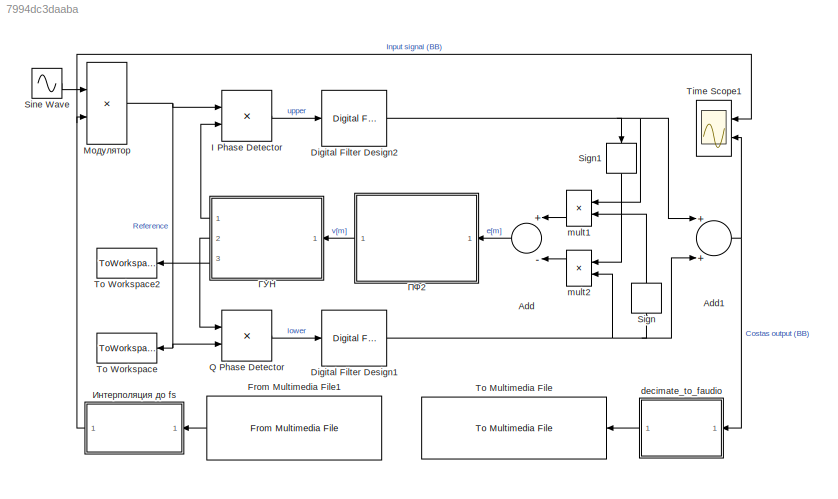
MODEL slx_7994dc3daaba
KIND model
CONFIG AbsTol = auto
CONFIG EnableMultiTasking = on
CONFIG FixedStep = auto
CONFIG MaxStep = auto
CONFIG MinStep = auto
CONFIG PreLoadFcn = % Инициализация параметров модели\nfs = 48e3*10; % \nfc = fs/5;\n% параметры контура ФАПЧ\nA = 1;       % амплитуда входного сигнала \nT = 1/fs;    % период дискретизации\nKp = A/2;   % коэффициент усиления ФД\nBn = 1500; % шумовая полоса, Гц\nKo = 1;      % коэффициент усиления ГУН (нормирован к fs)\nd = 0.707;  % демпинг фактор\n% оценка коэффициентов ПФ\nK1 = (4*d*Bn*T)/(Ko*Kp*(d+1/(4*d)));\nK2 = (4*(Bn*T)...<+24ch>
CONFIG RelTol = 1e-3
CONFIG SampleTimeConstraint = Unconstrained
CONFIG Solver = VariableStepDiscrete
CONFIG SolverName = VariableStepDiscrete
CONFIG StartTime = 0.0
CONFIG StopFcn = % Построение графика по завершении моделирования\nfigure(1);\nplot(lo_freq.time,lo_freq.signals.values,'b','linewidth',2);\nhold on; grid on;\nplot(tx_freq.time,tx_freq.signals.values,'r--','linewidth',2);\nxlabel('Время, с'); ylabel('Частота, Гц');\nlegend('Частота на выходе ГУН','Частота несущей');\n\n\n\n
CONFIG StopTime = 10
BLOCK [Sum] Add
  InputSameDT = off
  Inputs = +-
  OutDataTypeStr = Inherit: Inherit via internal rule
  Ports = [2, 1]
  SaturateOnIntegerOverflow = off
BLOCK [Sum] Add1
  InputSameDT = off
  OutDataTypeStr = Inherit: Inherit via internal rule
  Ports = [2, 1]
  SampleTime = 1/fs
  SaturateOnIntegerOverflow = off
BLOCK [Reference] Digital Filter Design1  REF=dsparch4/Digital
Filter Design
  Ports = [1, 1]
  SourceBlock = dsparch4/Digital\nFilter Design
  SourceProductBaseCode = DS
  SourceProductName = DSP System Toolbox
  SourceType = Digital Filter Design
  UserDataPersistent = on
BLOCK [Reference] Digital Filter Design2  REF=dsparch4/Digital
Filter Design
  Ports = [1, 1]
  SourceBlock = dsparch4/Digital\nFilter Design
  SourceProductBaseCode = DS
  SourceProductName = DSP System Toolbox
  SourceType = Digital Filter Design
  UserDataPersistent = on
BLOCK [Reference] From Multimedia File1  REF=dspvision/From Multimedia File
  Ports = [0, 1]
  SourceBlock = dspvision/From Multimedia File
  SourceProductBaseCode = VP
  SourceProductName = Computer Vision System Toolbox
  SourceType = From Multimedia File
BLOCK [Product] I Phase Detector
  InputSameDT = off
  OutDataTypeStr = Inherit: Inherit via internal rule
  Ports = [2, 1]
  RndMeth = Floor
  SaturateOnIntegerOverflow = off
BLOCK [Product] Q Phase Detector
  InputSameDT = off
  OutDataTypeStr = Inherit: Inherit via internal rule
  Ports = [2, 1]
  RndMeth = Floor
  SaturateOnIntegerOverflow = off
BLOCK [Signum] Sign
BLOCK [Signum] Sign1
BLOCK [Sin] Sine Wave
  Frequency = 2*pi*fc*0.99
  Phase = pi/5
  Ports = [0, 1]
  SampleTime = 1/fs
BLOCK [Scope] Time Scope1
  DefaultConfigurationName = spbscopes.TimeScopeBlockCfg
  Floating = off
  NumInputPorts = 2
  Ports = [2]
  ScopeSpecificationString = spbscopes.TimeScopeBlockCfg('CurrentConfiguration', extmgr.ConfigurationSet(extmgr.Configuration('Core','General UI',true,'FigureColor',[0.941176470588235 0.941176470588235 0.941176470588235]),extmgr.Configuration('Core','Source UI',true),extmgr.Configuration('Sources','WiredSimulink',true,'PointsPerSignal',5000000,'DataLoggingVariableName','ScopeData1'),extmgr.Configuration('Visuals','Time Domain...<+2393ch>
  UserDataPersistent = on
BLOCK [Reference] To Multimedia File  REF=dspvision/To Multimedia File
  Ports = [1]
  SourceBlock = dspvision/To Multimedia File
  SourceProductBaseCode = VP
  SourceProductName = Computer Vision System Toolbox
  SourceType = To Multimedia File
BLOCK [ToWorkspace] To Workspace
  FixptAsFi = on
  MaxDataPoints = inf
  Ports = [1]
  SampleTime = -1
  Save2DSignal = 3-D array (concatenate along third dimension)
  SaveFormat = Structure With Time
  VariableName = rx_signal
BLOCK [ToWorkspace] To Workspace2
  FixptAsFi = on
  MaxDataPoints = inf
  Ports = [1]
  SampleTime = -1
  Save2DSignal = 3-D array (concatenate along third dimension)
  SaveFormat = Structure With Time
  VariableName = lo_freq
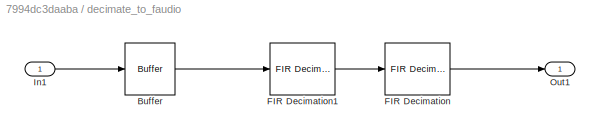
BLOCK [SubSystem] decimate_to_faudio
  Ports = [1, 1]
  RequestExecContextInheritance = off
BLOCK [Buffer] decimate_to_faudio/Buffer
BLOCK [Reference] decimate_to_faudio/FIR Decimation  REF=dspmlti4/FIR
Decimation
  Ports = [1, 1]
  SourceBlock = dspmlti4/FIR\nDecimation
  SourceProductBaseCode = DS
  SourceProductName = DSP System Toolbox
  SourceType = FIR Decimation
  UserDataPersistent = on
BLOCK [Reference] decimate_to_faudio/FIR Decimation1  REF=dspmlti4/FIR
Decimation
  Ports = [1, 1]
  SourceBlock = dspmlti4/FIR\nDecimation
  SourceProductBaseCode = DS
  SourceProductName = DSP System Toolbox
  SourceType = FIR Decimation
  UserDataPersistent = on
BLOCK [Inport] decimate_to_faudio/In1
  IconDisplay = Port number
BLOCK [Outport] decimate_to_faudio/Out1
  IconDisplay = Port number
BLOCK [Product] mult1
  InputSameDT = off
  OutDataTypeStr = Inherit: Inherit via internal rule
  Ports = [2, 1]
  RndMeth = Floor
  SaturateOnIntegerOverflow = off
BLOCK [Product] mult2
  InputSameDT = off
  OutDataTypeStr = Inherit: Inherit via internal rule
  Ports = [2, 1]
  RndMeth = Floor
  SaturateOnIntegerOverflow = off
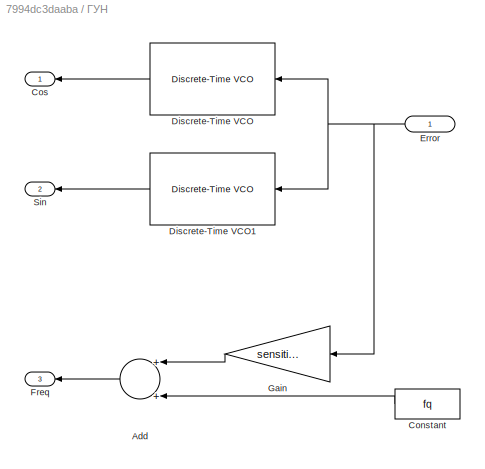
BLOCK [SubSystem] ГУН
  Ports = [1, 3]
  RequestExecContextInheritance = off
BLOCK [Sum] ГУН/Add
  InputSameDT = off
  OutDataTypeStr = Inherit: Inherit via internal rule
  Ports = [2, 1]
  SaturateOnIntegerOverflow = off
BLOCK [Constant] ГУН/Constant
  SampleTime = 1/fs
  Value = fq
BLOCK [Outport] ГУН/Cos
  IconDisplay = Port number
BLOCK [Reference] ГУН/Discrete-Time VCO  REF=commsynccomp2/Discrete-Time
VCO
  Ports = [1, 1]
  SourceBlock = commsynccomp2/Discrete-Time\nVCO
  SourceProductBaseCode = CM
  SourceProductName = Communications System Toolbox
  SourceType = Discrete-Time VCO
BLOCK [Reference] ГУН/Discrete-Time VCO1  REF=commsynccomp2/Discrete-Time
VCO
  Ports = [1, 1]
  SourceBlock = commsynccomp2/Discrete-Time\nVCO
  SourceProductBaseCode = CM
  SourceProductName = Communications System Toolbox
  SourceType = Discrete-Time VCO
BLOCK [Inport] ГУН/Error
  IconDisplay = Port number
BLOCK [Outport] ГУН/Freq
  IconDisplay = Port number
  Port = 3
BLOCK [Gain] ГУН/Gain
  Gain = sensitivity
  OutDataTypeStr = Inherit: Inherit via internal rule
  ParamDataTypeStr = Inherit: Inherit via internal rule
  SaturateOnIntegerOverflow = off
BLOCK [Outport] ГУН/Sin
  IconDisplay = Port number
  Port = 2
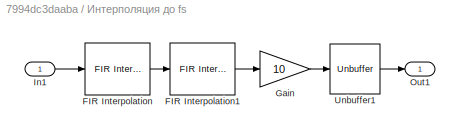
BLOCK [SubSystem] Интерполяция до fs
  Ports = [1, 1]
  RequestExecContextInheritance = off
BLOCK [Reference] Интерполяция до fs/FIR Interpolation  REF=dspmlti4/FIR
Interpolation
  Ports = [1, 1]
  SourceBlock = dspmlti4/FIR\nInterpolation
  SourceProductBaseCode = DS
  SourceProductName = DSP System Toolbox
  SourceType = FIR Interpolation
  UserDataPersistent = on
BLOCK [Reference] Интерполяция до fs/FIR Interpolation1  REF=dspmlti4/FIR
Interpolation
  Ports = [1, 1]
  SourceBlock = dspmlti4/FIR\nInterpolation
  SourceProductBaseCode = DS
  SourceProductName = DSP System Toolbox
  SourceType = FIR Interpolation
  UserDataPersistent = on
BLOCK [Gain] Интерполяция до fs/Gain
  Gain = 10
  OutDataTypeStr = Inherit: Inherit via internal rule
  ParamDataTypeStr = Inherit: Inherit via internal rule
  SaturateOnIntegerOverflow = off
BLOCK [Inport] Интерполяция до fs/In1
  IconDisplay = Port number
BLOCK [Outport] Интерполяция до fs/Out1
  IconDisplay = Port number
BLOCK [Unbuffer] Интерполяция до fs/Unbuffer1
  Ports = [1, 1]
BLOCK [Product] Модулятор
  InputSameDT = off
  OutDataTypeStr = Inherit: Inherit via internal rule
  Ports = [2, 1]
  RndMeth = Floor
  SaturateOnIntegerOverflow = off
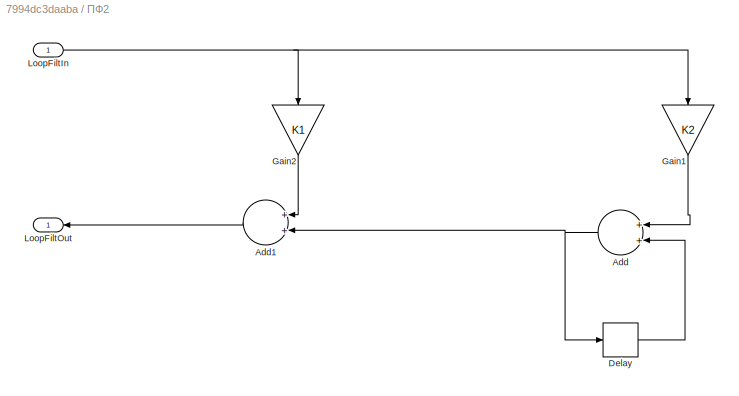
BLOCK [SubSystem] ПФ2
  Ports = [1, 1]
  RequestExecContextInheritance = off
BLOCK [Sum] ПФ2/Add
  InputSameDT = off
  OutDataTypeStr = Inherit: Inherit via internal rule
  Ports = [2, 1]
  SaturateOnIntegerOverflow = off
BLOCK [Sum] ПФ2/Add1
  InputSameDT = off
  OutDataTypeStr = Inherit: Inherit via internal rule
  Ports = [2, 1]
  SaturateOnIntegerOverflow = off
BLOCK [Delay] ПФ2/Delay
  DelayLength = 1
  InputPortMap = u0
  Ports = [1, 1]
BLOCK [Gain] ПФ2/Gain1
  Gain = K2
  OutDataTypeStr = Inherit: Inherit via internal rule
  ParamDataTypeStr = Inherit: Inherit via internal rule
  SaturateOnIntegerOverflow = off
BLOCK [Gain] ПФ2/Gain2
  Gain = K1
  OutDataTypeStr = Inherit: Inherit via internal rule
  ParamDataTypeStr = Inherit: Inherit via internal rule
  SaturateOnIntegerOverflow = off
BLOCK [Inport] ПФ2/LoopFiltIn
  IconDisplay = Port number
BLOCK [Outport] ПФ2/LoopFiltOut
  IconDisplay = Port number
NET Add1:1 -> Time Scope1:2, decimate_to_faudio:1
LINE Add:1 -> ПФ2:1
NET Digital Filter Design1:1 -> Add1:2, Sign:1, mult2:2
NET Digital Filter Design2:1 -> Add1:1, Sign1:1, mult1:1
LINE From Multimedia File1:1 -> Интерполяция до fs:1
LINE I Phase Detector:1 -> Digital Filter Design2:1
LINE Q Phase Detector:1 -> Digital Filter Design1:1
LINE Sign1:1 -> mult2:1
LINE Sign:1 -> mult1:2
LINE Sine Wave:1 -> Модулятор:1
LINE decimate_to_faudio/Buffer:1 -> decimate_to_faudio/FIR Decimation1:1
LINE decimate_to_faudio/FIR Decimation1:1 -> decimate_to_faudio/FIR Decimation:1
LINE decimate_to_faudio/FIR Decimation:1 -> decimate_to_faudio/Out1:1
LINE decimate_to_faudio/In1:1 -> decimate_to_faudio/Buffer:1
LINE decimate_to_faudio:1 -> To Multimedia File:1
LINE mult1:1 -> Add:1
LINE mult2:1 -> Add:2
LINE ГУН/Add:1 -> ГУН/Freq:1
LINE ГУН/Constant:1 -> ГУН/Add:2
LINE ГУН/Discrete-Time VCO1:1 -> ГУН/Sin:1
LINE ГУН/Discrete-Time VCO:1 -> ГУН/Cos:1
NET ГУН/Error:1 -> ГУН/Discrete-Time VCO1:1, ГУН/Discrete-Time VCO:1, ГУН/Gain:1
LINE ГУН/Gain:1 -> ГУН/Add:1
LINE ГУН:1 -> I Phase Detector:2
LINE ГУН:2 -> Q Phase Detector:1
LINE ГУН:3 -> To Workspace2:1
LINE Интерполяция до fs/FIR Interpolation1:1 -> Интерполяция до fs/Gain:1
LINE Интерполяция до fs/FIR Interpolation:1 -> Интерполяция до fs/FIR Interpolation1:1
LINE Интерполяция до fs/Gain:1 -> Интерполяция до fs/Unbuffer1:1
LINE Интерполяция до fs/In1:1 -> Интерполяция до fs/FIR Interpolation:1
LINE Интерполяция до fs/Unbuffer1:1 -> Интерполяция до fs/Out1:1
NET Интерполяция до fs:1 -> Time Scope1:1, Модулятор:2
NET Модулятор:1 -> I Phase Detector:1, Q Phase Detector:2, To Workspace:1
LINE ПФ2/Add1:1 -> ПФ2/LoopFiltOut:1
NET ПФ2/Add:1 -> ПФ2/Add1:2, ПФ2/Delay:1
LINE ПФ2/Delay:1 -> ПФ2/Add:2
LINE ПФ2/Gain1:1 -> ПФ2/Add:1
LINE ПФ2/Gain2:1 -> ПФ2/Add1:1
NET ПФ2/LoopFiltIn:1 -> ПФ2/Gain1:1, ПФ2/Gain2:1
LINE ПФ2:1 -> ГУН:1
note: NET lines group one-source signal fan-out (src -> all destinations, sorted); 1:1 wires keep LINE
